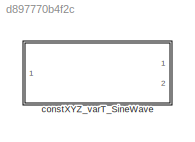
MODEL slx_d897770b4f2c
KIND library
CONFIG AbsTol = auto
CONFIG EnableMultiTasking = off
CONFIG FixedStep = auto
CONFIG MaxStep = auto
CONFIG MinStep = auto
CONFIG RelTol = 1e-3
CONFIG SampleTimeConstraint = Unconstrained
CONFIG Solver = VariableStepAuto
CONFIG SolverName = VariableStepAuto
CONFIG StartTime = 0.0
CONFIG StopTime = 10.0
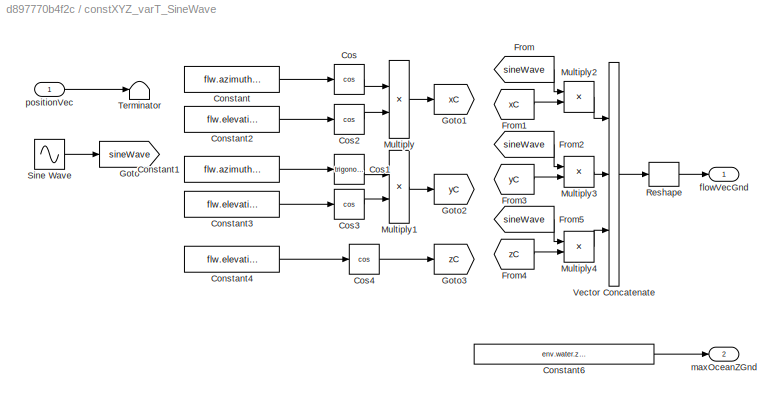
BLOCK [SubSystem] constXYZ_varT_SineWave
  Ports = [1, 2]
  RequestExecContextInheritance = off
BLOCK [Constant] constXYZ_varT_SineWave/Constant
  Value = flw.azimuth.Value
BLOCK [Constant] constXYZ_varT_SineWave/Constant1
  Value = flw.azimuth.Value
BLOCK [Constant] constXYZ_varT_SineWave/Constant2
  Value = flw.elevation.Value
BLOCK [Constant] constXYZ_varT_SineWave/Constant3
  Value = flw.elevation.Value
BLOCK [Constant] constXYZ_varT_SineWave/Constant4
  Value = flw.elevation.Value
BLOCK [Constant] constXYZ_varT_SineWave/Constant6
  Value = env.water.zGridPoints.Value(end)
BLOCK [Trigonometry] constXYZ_varT_SineWave/Cos
  Operator = cos
  Ports = [1, 1]
BLOCK [Trigonometry] constXYZ_varT_SineWave/Cos1
  Ports = [1, 1]
BLOCK [Trigonometry] constXYZ_varT_SineWave/Cos2
  Operator = cos
  Ports = [1, 1]
BLOCK [Trigonometry] constXYZ_varT_SineWave/Cos3
  Operator = cos
  Ports = [1, 1]
BLOCK [Trigonometry] constXYZ_varT_SineWave/Cos4
  Operator = cos
  Ports = [1, 1]
BLOCK [From] constXYZ_varT_SineWave/From
  GotoTag = sineWave
BLOCK [From] constXYZ_varT_SineWave/From1
  GotoTag = xC
BLOCK [From] constXYZ_varT_SineWave/From2
  GotoTag = sineWave
BLOCK [From] constXYZ_varT_SineWave/From3
  GotoTag = yC
BLOCK [From] constXYZ_varT_SineWave/From4
  GotoTag = zC
BLOCK [From] constXYZ_varT_SineWave/From5
  GotoTag = sineWave
BLOCK [Goto] constXYZ_varT_SineWave/Goto
  GotoTag = sineWave
BLOCK [Goto] constXYZ_varT_SineWave/Goto1
  GotoTag = xC
BLOCK [Goto] constXYZ_varT_SineWave/Goto2
  GotoTag = yC
BLOCK [Goto] constXYZ_varT_SineWave/Goto3
  GotoTag = zC
BLOCK [Product] constXYZ_varT_SineWave/Multiply
  InputSameDT = off
  OutDataTypeStr = Inherit: Inherit via internal rule
  Ports = [2, 1]
  RndMeth = Floor
  SaturateOnIntegerOverflow = off
BLOCK [Product] constXYZ_varT_SineWave/Multiply1
  InputSameDT = off
  OutDataTypeStr = Inherit: Inherit via internal rule
  Ports = [2, 1]
  RndMeth = Floor
  SaturateOnIntegerOverflow = off
BLOCK [Product] constXYZ_varT_SineWave/Multiply2
  InputSameDT = off
  OutDataTypeStr = Inherit: Inherit via internal rule
  Ports = [2, 1]
  RndMeth = Floor
  SaturateOnIntegerOverflow = off
BLOCK [Product] constXYZ_varT_SineWave/Multiply3
  InputSameDT = off
  OutDataTypeStr = Inherit: Inherit via internal rule
  Ports = [2, 1]
  RndMeth = Floor
  SaturateOnIntegerOverflow = off
BLOCK [Product] constXYZ_varT_SineWave/Multiply4
  InputSameDT = off
  OutDataTypeStr = Inherit: Inherit via internal rule
  Ports = [2, 1]
  RndMeth = Floor
  SaturateOnIntegerOverflow = off
BLOCK [Reshape] constXYZ_varT_SineWave/Reshape
  OutputDimensionality = Column vector (2-D)
  Ports = [1, 1]
BLOCK [Sin] constXYZ_varT_SineWave/Sine Wave
  Amplitude = flw.amplitude.Value
  Bias = flw.waveBias.Value
  Frequency = flw.frequency.Value
  Phase = flw.phase.Value
  Ports = [0, 1]
  SampleTime = 0
BLOCK [Terminator] constXYZ_varT_SineWave/Terminator
BLOCK [Concatenate] constXYZ_varT_SineWave/Vector Concatenate
  NumInputs = 3
  Ports = [3, 1]
BLOCK [Outport] constXYZ_varT_SineWave/flowVecGnd
  IconDisplay = Port number
BLOCK [Outport] constXYZ_varT_SineWave/maxOceanZGnd
  IconDisplay = Port number
  Port = 2
BLOCK [Inport] constXYZ_varT_SineWave/positionVec 
  IconDisplay = Port number
LINE constXYZ_varT_SineWave/Constant1:1 -> constXYZ_varT_SineWave/Cos1:1
LINE constXYZ_varT_SineWave/Constant2:1 -> constXYZ_varT_SineWave/Cos2:1
LINE constXYZ_varT_SineWave/Constant3:1 -> constXYZ_varT_SineWave/Cos3:1
LINE constXYZ_varT_SineWave/Constant4:1 -> constXYZ_varT_SineWave/Cos4:1
LINE constXYZ_varT_SineWave/Constant6:1 -> constXYZ_varT_SineWave/maxOceanZGnd:1
LINE constXYZ_varT_SineWave/Constant:1 -> constXYZ_varT_SineWave/Cos:1
LINE constXYZ_varT_SineWave/Cos1:1 -> constXYZ_varT_SineWave/Multiply1:1
LINE constXYZ_varT_SineWave/Cos2:1 -> constXYZ_varT_SineWave/Multiply:2
LINE constXYZ_varT_SineWave/Cos3:1 -> constXYZ_varT_SineWave/Multiply1:2
LINE constXYZ_varT_SineWave/Cos4:1 -> constXYZ_varT_SineWave/Goto3:1
LINE constXYZ_varT_SineWave/Cos:1 -> constXYZ_varT_SineWave/Multiply:1
LINE constXYZ_varT_SineWave/From1:1 -> constXYZ_varT_SineWave/Multiply2:2
LINE constXYZ_varT_SineWave/From2:1 -> constXYZ_varT_SineWave/Multiply3:1
LINE constXYZ_varT_SineWave/From3:1 -> constXYZ_varT_SineWave/Multiply3:2
LINE constXYZ_varT_SineWave/From4:1 -> constXYZ_varT_SineWave/Multiply4:2
LINE constXYZ_varT_SineWave/From5:1 -> constXYZ_varT_SineWave/Multiply4:1
LINE constXYZ_varT_SineWave/From:1 -> constXYZ_varT_SineWave/Multiply2:1
LINE constXYZ_varT_SineWave/Multiply1:1 -> constXYZ_varT_SineWave/Goto2:1
LINE constXYZ_varT_SineWave/Multiply2:1 -> constXYZ_varT_SineWave/Vector Concatenate:1
LINE constXYZ_varT_SineWave/Multiply3:1 -> constXYZ_varT_SineWave/Vector Concatenate:2
LINE constXYZ_varT_SineWave/Multiply4:1 -> constXYZ_varT_SineWave/Vector Concatenate:3
LINE constXYZ_varT_SineWave/Multiply:1 -> constXYZ_varT_SineWave/Goto1:1
LINE constXYZ_varT_SineWave/Reshape:1 -> constXYZ_varT_SineWave/flowVecGnd:1
LINE constXYZ_varT_SineWave/Sine Wave:1 -> constXYZ_varT_SineWave/Goto:1
LINE constXYZ_varT_SineWave/Vector Concatenate:1 -> constXYZ_varT_SineWave/Reshape:1
LINE constXYZ_varT_SineWave/positionVec :1 -> constXYZ_varT_SineWave/Terminator:1
